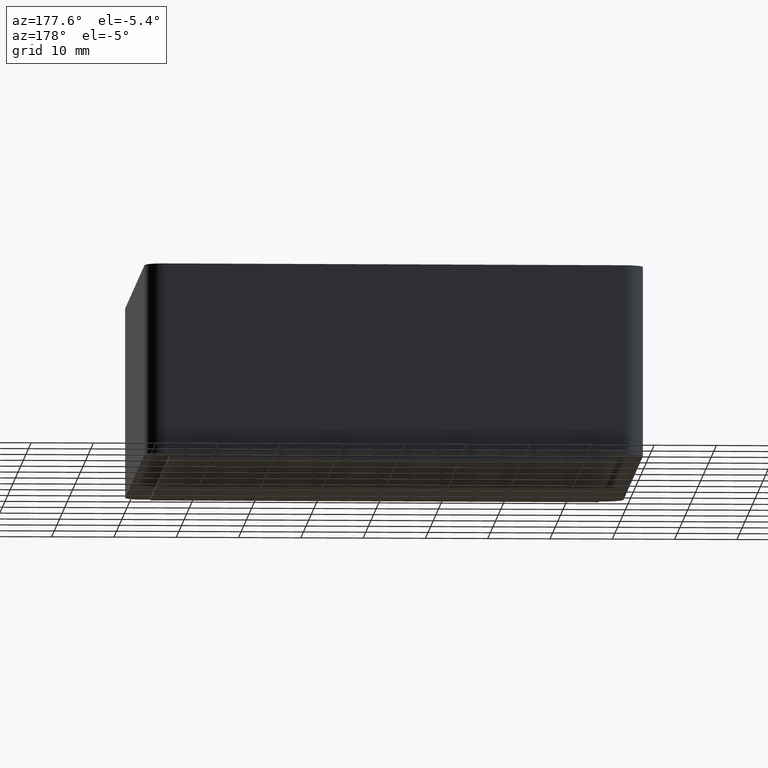
[diagram: clean part render]
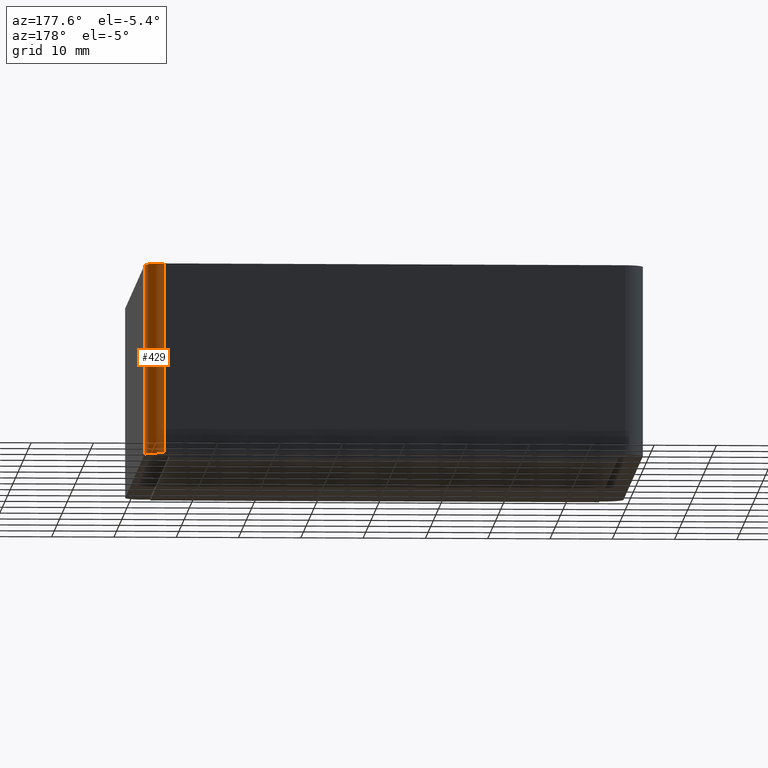
[diagram: same view with one face highlighted and labeled with its STEP entity id]
A machine part, auxiliary view. The second image highlights one B-rep face of the part: STEP entity #429.
In plain terms, the highlighted cylindrical surface (edge-blend (fillet) strip) has radius 3 mm, axis along (0, 0, 1).
Its self-contained STEP definition (entity closure, byte-faithful):
#47=FACE_OUTER_BOUND('',#71,.T.);
#71=EDGE_LOOP('',(#347,#348,#349,#350));
#111=LINE('',#687,#155);
#112=LINE('',#690,#156);
#155=VECTOR('',#559,30.5);
#156=VECTOR('',#562,30.5);
#179=CIRCLE('',#464,3.);
#180=CIRCLE('',#465,3.);
#211=VERTEX_POINT('',#683);
#212=VERTEX_POINT('',#684);
#213=VERTEX_POINT('',#686);
#214=VERTEX_POINT('',#688);
#263=EDGE_CURVE('',#211,#212,#179,.T.);
#264=EDGE_CURVE('',#212,#213,#111,.T.);
#265=EDGE_CURVE('',#213,#214,#180,.T.);
#266=EDGE_CURVE('',#214,#211,#112,.T.);
#347=ORIENTED_EDGE('',*,*,#263,.T.);
#348=ORIENTED_EDGE('',*,*,#264,.T.);
#349=ORIENTED_EDGE('',*,*,#265,.T.);
#350=ORIENTED_EDGE('',*,*,#266,.T.);
#411=CYLINDRICAL_SURFACE('',#463,3.);
#429=ADVANCED_FACE('',(#47),#411,.T.);
#463=AXIS2_PLACEMENT_3D('',#682,#555,#556);
#464=AXIS2_PLACEMENT_3D('',#685,#557,#558);
#465=AXIS2_PLACEMENT_3D('',#689,#560,#561);
#555=DIRECTION('center_axis',(0.,0.,1.));
#556=DIRECTION('ref_axis',(0.707106781186547,0.707106781186547,0.));
#557=DIRECTION('center_axis',(0.,0.,-1.));
#558=DIRECTION('ref_axis',(0.707106781186547,0.707106781186547,0.));
#559=DIRECTION('',(0.,0.,-1.));
#560=DIRECTION('center_axis',(0.,0.,1.));
#561=DIRECTION('ref_axis',(0.707106781186547,0.707106781186547,0.));
#562=DIRECTION('',(0.,0.,1.));
#682=CARTESIAN_POINT('Origin',(37.,37.,0.));
#683=CARTESIAN_POINT('',(37.,40.,30.5));
#684=CARTESIAN_POINT('',(40.,37.,30.5));
#685=CARTESIAN_POINT('Origin',(37.,37.,30.5));
#686=CARTESIAN_POINT('',(40.,37.,0.));
#687=CARTESIAN_POINT('',(40.,37.,0.));
#688=CARTESIAN_POINT('',(37.,40.,0.));
#689=CARTESIAN_POINT('Origin',(37.,37.,0.));
#690=CARTESIAN_POINT('',(37.,40.,0.));